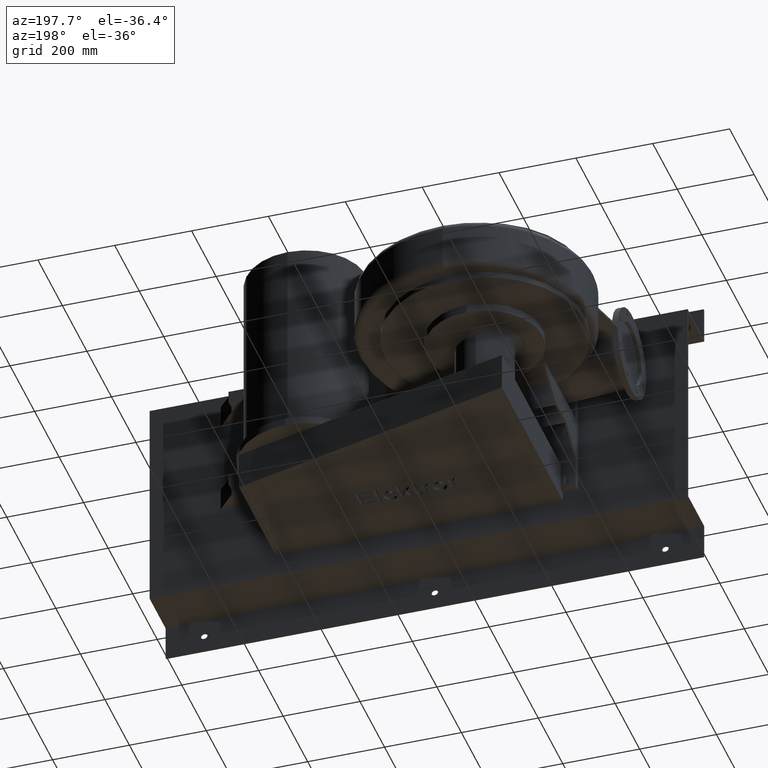
[diagram: clean part render]
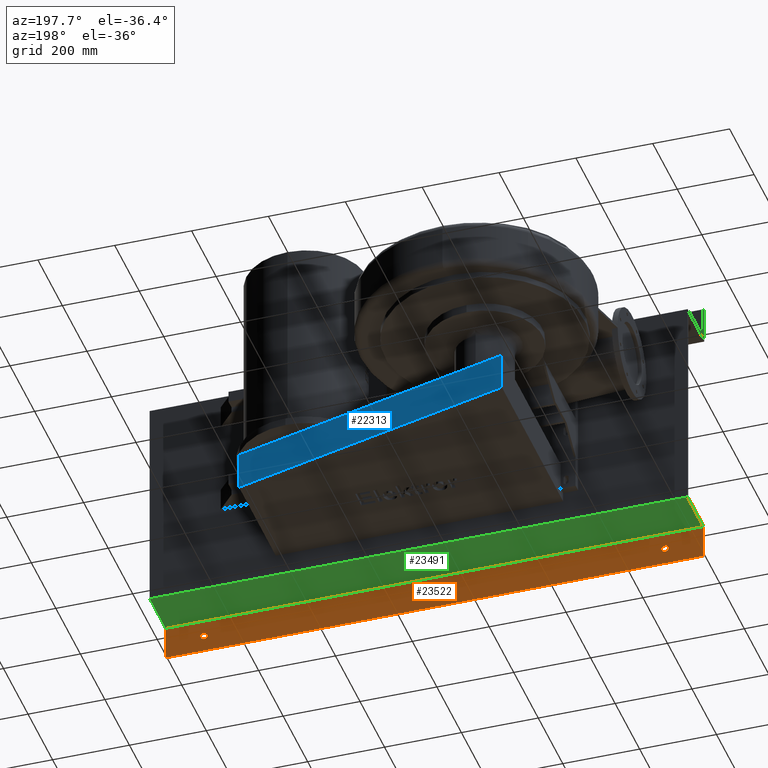
[diagram: same view with three faces highlighted in distinct colors, each labeled with its STEP entity id]
A machine part, auxiliary view with three faces highlighted in distinct colors.
Their STEP definitions:

[orange] entity #23522 — the highlighted planar face has unit normal (0, 1, 0).
#22919=CARTESIAN_POINT('',(324.000000000000060,-515.0,-423.500000000000000));
#22920=VERTEX_POINT('',#22919);
#22921=CARTESIAN_POINT('',(315.000000000000060,-515.0,-423.500000000000000));
#22922=DIRECTION('',(0.0,-1.0,0.0));
#22923=DIRECTION('',(1.0,0.0,0.0));
#22924=AXIS2_PLACEMENT_3D('',#22921,#22922,#22923);
#22925=CIRCLE('',#22924,9.0);
#22926=EDGE_CURVE('',#22920,#22920,#22925,.T.);
#22968=CARTESIAN_POINT('',(924.0,-515.0,-423.500000000000000));
#22969=VERTEX_POINT('',#22968);
#22970=CARTESIAN_POINT('',(915.0,-515.0,-423.500000000000000));
#22971=DIRECTION('',(0.0,-1.0,0.0));
#22972=DIRECTION('',(1.0,0.0,0.0));
#22973=AXIS2_PLACEMENT_3D('',#22970,#22971,#22972);
#22974=CIRCLE('',#22973,9.0);
#22975=EDGE_CURVE('',#22969,#22969,#22974,.T.);
#23017=CARTESIAN_POINT('',(-275.999999999999940,-515.0,-423.500000000000000));
#23018=VERTEX_POINT('',#23017);
#23019=CARTESIAN_POINT('',(-284.999999999999940,-515.0,-423.500000000000000));
#23020=DIRECTION('',(0.0,-1.0,0.0));
#23021=DIRECTION('',(1.0,0.0,0.0));
#23022=AXIS2_PLACEMENT_3D('',#23019,#23020,#23021);
#23023=CIRCLE('',#23022,9.0);
#23024=EDGE_CURVE('',#23018,#23018,#23023,.T.);
#23160=CARTESIAN_POINT('',(1015.0,-515.000000000000110,-468.500000000000000));
#23161=VERTEX_POINT('',#23160);
#23178=CARTESIAN_POINT('',(-384.999999999999940,-515.000000000000110,-468.500000000000000));
#23179=VERTEX_POINT('',#23178);
#23186=CARTESIAN_POINT('',(-384.999999999999940,-515.000000000000110,-468.500000000000000));
#23187=DIRECTION('',(1.0,0.0,0.0));
#23188=VECTOR('',#23187,1400.0);
#23189=LINE('',#23186,#23188);
#23190=EDGE_CURVE('',#23179,#23161,#23189,.T.);
#23466=CARTESIAN_POINT('',(1015.0,-515.0,-377.500000000000060));
#23467=VERTEX_POINT('',#23466);
#23474=CARTESIAN_POINT('',(-384.999999999999940,-515.0,-377.500000000000060));
#23475=VERTEX_POINT('',#23474);
#23476=CARTESIAN_POINT('',(-384.999999999999940,-515.0,-377.500000000000060));
#23477=DIRECTION('',(1.0,0.0,0.0));
#23478=VECTOR('',#23477,1400.0);
#23479=LINE('',#23476,#23478);
#23480=EDGE_CURVE('',#23475,#23467,#23479,.T.);
#23492=CARTESIAN_POINT('',(-384.999999999999940,-515.0,-377.500000000000060));
#23493=DIRECTION('',(0.0,1.0,0.0));
#23494=DIRECTION('',(0.0,0.0,1.0));
#23495=AXIS2_PLACEMENT_3D('',#23492,#23493,#23494);
#23496=PLANE('',#23495);
#23497=CARTESIAN_POINT('',(1015.0,-515.000000000000110,-377.500000000000060));
#23498=DIRECTION('',(0.0,0.0,-1.0));
#23499=VECTOR('',#23498,90.999999999999943);
#23500=LINE('',#23497,#23499);
#23501=EDGE_CURVE('',#23467,#23161,#23500,.T.);
#23502=ORIENTED_EDGE('',*,*,#23501,.T.);
#23503=ORIENTED_EDGE('',*,*,#23190,.F.);
#23504=CARTESIAN_POINT('',(-384.999999999999940,-515.000000000000110,-468.500000000000000));
#23505=DIRECTION('',(0.0,0.0,1.0));
#23506=VECTOR('',#23505,90.999999999999943);
#23507=LINE('',#23504,#23506);
#23508=EDGE_CURVE('',#23179,#23475,#23507,.T.);
#23509=ORIENTED_EDGE('',*,*,#23508,.T.);
#23510=ORIENTED_EDGE('',*,*,#23480,.T.);
#23511=EDGE_LOOP('',(#23502,#23503,#23509,#23510));
#23512=FACE_OUTER_BOUND('',#23511,.T.);
#23513=ORIENTED_EDGE('',*,*,#22926,.T.);
#23514=EDGE_LOOP('',(#23513));
#23515=FACE_BOUND('',#23514,.T.);
#23516=ORIENTED_EDGE('',*,*,#22975,.T.);
#23517=EDGE_LOOP('',(#23516));
#23518=FACE_BOUND('',#23517,.T.);
#23519=ORIENTED_EDGE('',*,*,#23024,.T.);
#23520=EDGE_LOOP('',(#23519));
#23521=FACE_BOUND('',#23520,.T.);
#23522=ADVANCED_FACE('',(#23512,#23515,#23518,#23521),#23496,.T.);

[blue] entity #22313 — the highlighted planar face has unit normal (0.2583, 0.9661, 0).
#11793=CARTESIAN_POINT('',(453.188022784044900,-22.483428551883588,-219.500000000000030));
#11794=VERTEX_POINT('',#11793);
#11822=CARTESIAN_POINT('',(687.000000000000230,-85.000000000000071,-219.500000000000000));
#11823=VERTEX_POINT('',#11822);
#11824=CARTESIAN_POINT('',(453.188022784044900,-22.483428551883598,-219.500000000000030));
#11825=DIRECTION('',(0.966063236349469,-0.258305678168308,0.0));
#11826=VECTOR('',#11825,242.025540791177380);
#11827=LINE('',#11824,#11826);
#11828=EDGE_CURVE('',#11794,#11823,#11827,.T.);
#21594=CARTESIAN_POINT('',(687.000000000000230,-85.000000000000071,-318.500000000000000));
#21595=VERTEX_POINT('',#21594);
#21610=CARTESIAN_POINT('',(-60.999999999999801,115.000000000000140,-318.500000000000000));
#21611=VERTEX_POINT('',#21610);
#21618=CARTESIAN_POINT('',(687.000000000000230,-85.000000000000071,-318.500000000000000));
#21619=DIRECTION('',(-0.966063236349469,0.258305678168308,0.0));
#21620=VECTOR('',#21619,774.276436423064640);
#21621=LINE('',#21618,#21620);
#21622=EDGE_CURVE('',#21595,#21611,#21621,.T.);
#22209=CARTESIAN_POINT('',(-60.999999999999801,115.000000000000140,-219.500000000000000));
#22210=VERTEX_POINT('',#22209);
#22211=CARTESIAN_POINT('',(-60.999999999999773,115.000000000000160,-219.500000000000030));
#22212=DIRECTION('',(0.966063236349469,-0.258305678168308,0.0));
#22213=VECTOR('',#22212,532.250895631887370);
#22214=LINE('',#22211,#22213);
#22215=EDGE_CURVE('',#22210,#11794,#22214,.T.);
#22272=CARTESIAN_POINT('',(-60.999999999999801,115.000000000000140,-318.500000000000000));
#22273=DIRECTION('',(0.0,0.0,1.0));
#22274=VECTOR('',#22273,99.0);
#22275=LINE('',#22272,#22274);
#22276=EDGE_CURVE('',#21611,#22210,#22275,.T.);
#22296=CARTESIAN_POINT('',(-60.999999999999801,115.000000000000140,-318.500000000000000));
#22297=DIRECTION('',(0.258305678168308,0.966063236349469,0.0));
#22298=DIRECTION('',(0.0,0.0,1.0));
#22299=AXIS2_PLACEMENT_3D('',#22296,#22297,#22298);
#22300=PLANE('',#22299);
#22301=ORIENTED_EDGE('',*,*,#22215,.T.);
#22302=ORIENTED_EDGE('',*,*,#11828,.T.);
#22303=CARTESIAN_POINT('',(687.000000000000230,-85.000000000000071,-318.500000000000000));
#22304=DIRECTION('',(0.0,0.0,1.0));
#22305=VECTOR('',#22304,99.0);
#22306=LINE('',#22303,#22305);
#22307=EDGE_CURVE('',#21595,#11823,#22306,.T.);
#22308=ORIENTED_EDGE('',*,*,#22307,.F.);
#22309=ORIENTED_EDGE('',*,*,#21622,.T.);
#22310=ORIENTED_EDGE('',*,*,#22276,.T.);
#22311=EDGE_LOOP('',(#22301,#22302,#22308,#22309,#22310));
#22312=FACE_OUTER_BOUND('',#22311,.T.);
#22313=ADVANCED_FACE('',(#22312),#22300,.T.);

[green] entity #23491 — the highlighted planar face has unit normal (0, 0, -1).
#22382=CARTESIAN_POINT('',(1015.0,-385.0,-377.500000000000110));
#22383=VERTEX_POINT('',#22382);
#22390=CARTESIAN_POINT('',(-384.999999999999940,-385.0,-377.500000000000110));
#22391=VERTEX_POINT('',#22390);
#22392=CARTESIAN_POINT('',(-384.999999999999940,-385.0,-377.500000000000110));
#22393=DIRECTION('',(1.0,0.0,0.0));
#22394=VECTOR('',#22393,1400.0);
#22395=LINE('',#22392,#22394);
#22396=EDGE_CURVE('',#22391,#22383,#22395,.T.);
#23461=CARTESIAN_POINT('',(-384.999999999999940,-385.0,-377.500000000000110));
#23462=DIRECTION('',(0.0,0.0,-1.0));
#23463=DIRECTION('',(-1.0,0.0,0.0));
#23464=AXIS2_PLACEMENT_3D('',#23461,#23462,#23463);
#23465=PLANE('',#23464);
#23466=CARTESIAN_POINT('',(1015.0,-515.0,-377.500000000000060));
#23467=VERTEX_POINT('',#23466);
#23468=CARTESIAN_POINT('',(1015.0,-385.0,-377.500000000000110));
#23469=DIRECTION('',(0.0,-1.0,0.0));
#23470=VECTOR('',#23469,130.0);
#23471=LINE('',#23468,#23470);
#23472=EDGE_CURVE('',#22383,#23467,#23471,.T.);
#23473=ORIENTED_EDGE('',*,*,#23472,.T.);
#23474=CARTESIAN_POINT('',(-384.999999999999940,-515.0,-377.500000000000060));
#23475=VERTEX_POINT('',#23474);
#23476=CARTESIAN_POINT('',(-384.999999999999940,-515.0,-377.500000000000060));
#23477=DIRECTION('',(1.0,0.0,0.0));
#23478=VECTOR('',#23477,1400.0);
#23479=LINE('',#23476,#23478);
#23480=EDGE_CURVE('',#23475,#23467,#23479,.T.);
#23481=ORIENTED_EDGE('',*,*,#23480,.F.);
#23482=CARTESIAN_POINT('',(-384.999999999999940,-515.0,-377.500000000000060));
#23483=DIRECTION('',(0.0,1.0,0.0));
#23484=VECTOR('',#23483,130.0);
#23485=LINE('',#23482,#23484);
#23486=EDGE_CURVE('',#23475,#22391,#23485,.T.);
#23487=ORIENTED_EDGE('',*,*,#23486,.T.);
#23488=ORIENTED_EDGE('',*,*,#22396,.T.);
#23489=EDGE_LOOP('',(#23473,#23481,#23487,#23488));
#23490=FACE_OUTER_BOUND('',#23489,.T.);
#23491=ADVANCED_FACE('',(#23490),#23465,.T.);